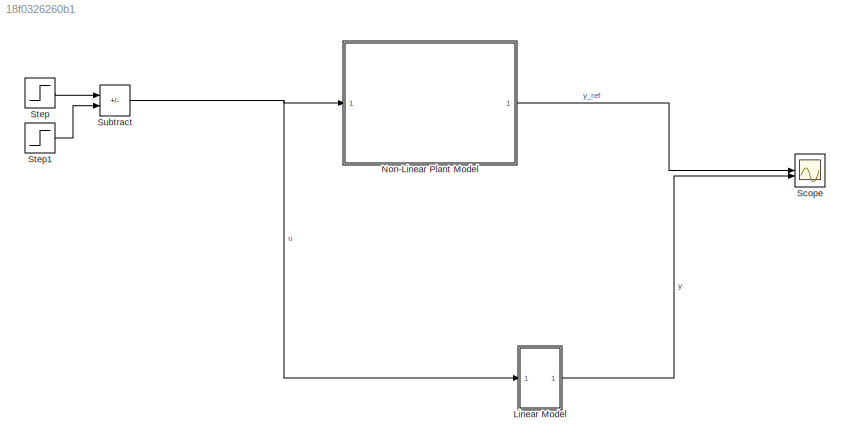
MODEL slx_18f0326260b1
KIND model
CONFIG AbsTol = auto
CONFIG EnableMultiTasking = off
CONFIG FixedStep = auto
CONFIG MaxStep = auto
CONFIG MinStep = auto
CONFIG RelTol = 1e-3
CONFIG SampleTimeConstraint = Unconstrained
CONFIG SolverName = VariableStepAuto
CONFIG StartTime = 0.0
CONFIG StopTime = 10.0
WORKSPACE source: mxarray member
WORKSPACE A = [0 0 0 1 0 -2.65135135135 0 1 0]
WORKSPACE B = [0 0 1]
WORKSPACE C = [2.65135135135 0 0]
WORKSPACE g = 9.81
WORKSPACE l = 3.7
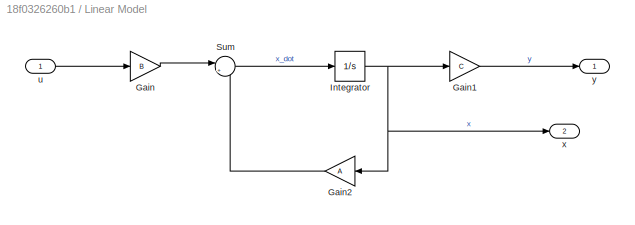
BLOCK [SubSystem] Linear Model
BLOCK [Gain] Linear Model/Gain
  Gain = B
  Multiplication = Matrix(K*u)
BLOCK [Gain] Linear Model/Gain1
  Gain = C
  Multiplication = Matrix(K*u)
BLOCK [Gain] Linear Model/Gain2
  Gain = A
  Multiplication = Matrix(K*u)
BLOCK [Integrator] Linear Model/Integrator
BLOCK [Sum] Linear Model/Sum
  Inputs = |++
BLOCK [Inport] Linear Model/u
BLOCK [Outport] Linear Model/x
  Port = 2
BLOCK [Outport] Linear Model/y
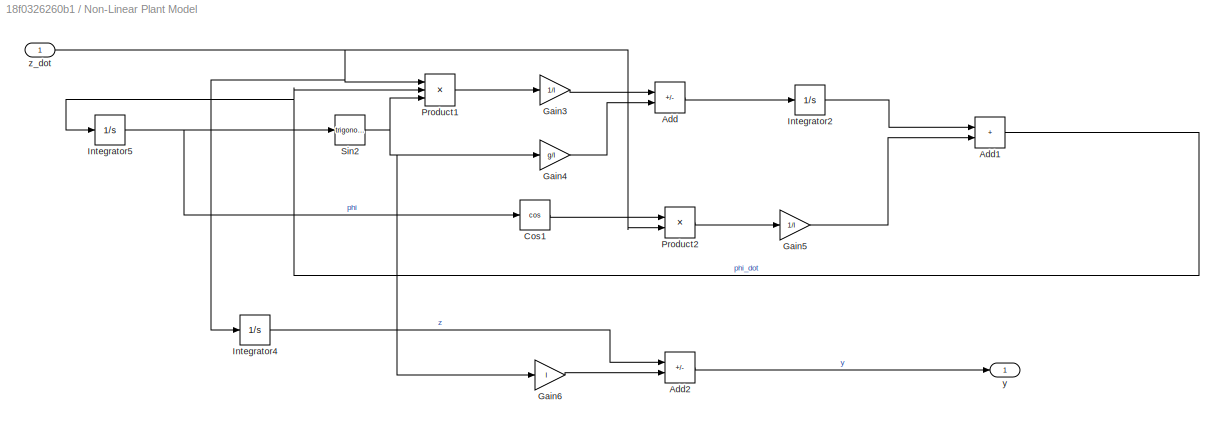
BLOCK [SubSystem] Non-Linear Plant Model
BLOCK [Sum] Non-Linear Plant Model/Add
  IconShape = rectangular
  Inputs = +-
BLOCK [Sum] Non-Linear Plant Model/Add1
  IconShape = rectangular
BLOCK [Sum] Non-Linear Plant Model/Add2
  IconShape = rectangular
  Inputs = +-
BLOCK [Trigonometry] Non-Linear Plant Model/Cos1
  Operator = cos
BLOCK [Gain] Non-Linear Plant Model/Gain3
  Gain = 1/l
BLOCK [Gain] Non-Linear Plant Model/Gain4
  Gain = g/l
BLOCK [Gain] Non-Linear Plant Model/Gain5
  Gain = 1/l
BLOCK [Gain] Non-Linear Plant Model/Gain6
  Gain = l
BLOCK [Integrator] Non-Linear Plant Model/Integrator2
BLOCK [Integrator] Non-Linear Plant Model/Integrator4
BLOCK [Integrator] Non-Linear Plant Model/Integrator5
BLOCK [Product] Non-Linear Plant Model/Product1
  Inputs = 3
BLOCK [Product] Non-Linear Plant Model/Product2
BLOCK [Trigonometry] Non-Linear Plant Model/Sin2
BLOCK [Outport] Non-Linear Plant Model/y
BLOCK [Inport] Non-Linear Plant Model/z_dot
BLOCK [Scope] Scope
  Floating = off
  NumInputPorts = 2
  ScopeSpecificationString = Simulink.scopes.TimeScopeBlockCfg('CurrentConfiguration', extmgr.ConfigurationSet(extmgr.Configuration('Core','General UI',true),extmgr.Configuration('Core','Source UI',true),extmgr.Configuration('Sources','WiredSimulink',true),extmgr.Configuration('Visuals','Time Domain',true,'SerializedDisplays',{struct('MinYLimReal','-0.23651','MaxYLimReal','2.12862','YLabelReal','','MinYLimMag','0.00000','MaxY...<+1445ch>
BLOCK [Step] Step
  SampleTime = 0
  Time = 0
BLOCK [Step] Step1
  SampleTime = 0
BLOCK [Sum] Subtract
  IconShape = rectangular
  Inputs = +-
LINE Linear Model/Gain1:1 -> Linear Model/y:1
LINE Linear Model/Gain2:1 -> Linear Model/Sum:2
LINE Linear Model/Gain:1 -> Linear Model/Sum:1
NET Linear Model/Integrator:1 -> Linear Model/Gain1:1, Linear Model/Gain2:1, Linear Model/x:1
LINE Linear Model/Sum:1 -> Linear Model/Integrator:1
LINE Linear Model/u:1 -> Linear Model/Gain:1
LINE Linear Model:1 -> Scope:2
NET Non-Linear Plant Model/Add1:1 -> Non-Linear Plant Model/Integrator5:1, Non-Linear Plant Model/Product1:2
LINE Non-Linear Plant Model/Add2:1 -> Non-Linear Plant Model/y:1
LINE Non-Linear Plant Model/Add:1 -> Non-Linear Plant Model/Integrator2:1
LINE Non-Linear Plant Model/Cos1:1 -> Non-Linear Plant Model/Product2:1
LINE Non-Linear Plant Model/Gain3:1 -> Non-Linear Plant Model/Add:1
LINE Non-Linear Plant Model/Gain4:1 -> Non-Linear Plant Model/Add:2
LINE Non-Linear Plant Model/Gain5:1 -> Non-Linear Plant Model/Add1:2
LINE Non-Linear Plant Model/Gain6:1 -> Non-Linear Plant Model/Add2:2
LINE Non-Linear Plant Model/Integrator2:1 -> Non-Linear Plant Model/Add1:1
LINE Non-Linear Plant Model/Integrator4:1 -> Non-Linear Plant Model/Add2:1
NET Non-Linear Plant Model/Integrator5:1 -> Non-Linear Plant Model/Cos1:1, Non-Linear Plant Model/Sin2:1
LINE Non-Linear Plant Model/Product1:1 -> Non-Linear Plant Model/Gain3:1
LINE Non-Linear Plant Model/Product2:1 -> Non-Linear Plant Model/Gain5:1
NET Non-Linear Plant Model/Sin2:1 -> Non-Linear Plant Model/Gain4:1, Non-Linear Plant Model/Gain6:1, Non-Linear Plant Model/Product1:3
NET Non-Linear Plant Model/z_dot:1 -> Non-Linear Plant Model/Integrator4:1, Non-Linear Plant Model/Product1:1, Non-Linear Plant Model/Product2:2
LINE Non-Linear Plant Model:1 -> Scope:1
LINE Step1:1 -> Subtract:2
LINE Step:1 -> Subtract:1
NET Subtract:1 -> Linear Model:1, Non-Linear Plant Model:1
note: NET lines group one-source signal fan-out (src -> all destinations, sorted); 1:1 wires keep LINE
